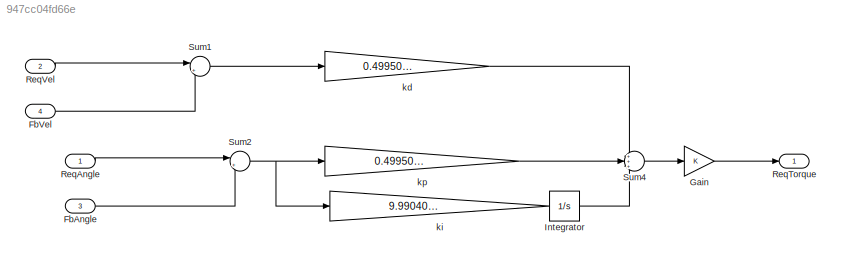
MODEL slx_947cc04fd66e
KIND model
CONFIG AbsTol = auto
CONFIG EnableMultiTasking = off
CONFIG FixedStep = auto
CONFIG MaxStep = auto
CONFIG MinStep = auto
CONFIG RelTol = 1e-3
CONFIG SampleTimeConstraint = Unconstrained
CONFIG SolverName = VariableStepAuto
CONFIG StartTime = 0.0
CONFIG StopTime = 10.0
BLOCK [Inport] FbAngle
  Port = 3
BLOCK [Inport] FbVel
  Port = 4
BLOCK [Gain] Gain
BLOCK [Integrator] Integrator
BLOCK [Inport] ReqAngle
BLOCK [Outport] ReqTorque
BLOCK [Inport] ReqVel
  Port = 2
BLOCK [Sum] Sum1
  Inputs = |+-
BLOCK [Sum] Sum2
  Inputs = |+-
BLOCK [Sum] Sum4
  Inputs = +++
BLOCK [Gain] kd
  Gain = 0.4995004995005
BLOCK [Gain] ki
  Gain = 9.99040919079382e-11
BLOCK [Gain] kp
  Gain = 0.499500459540461
LINE FbAngle:1 -> Sum2:2
LINE FbVel:1 -> Sum1:2
LINE Gain:1 -> ReqTorque:1
LINE Integrator:1 -> Sum4:3
LINE ReqAngle:1 -> Sum2:1
LINE ReqVel:1 -> Sum1:1
LINE Sum1:1 -> kd:1
NET Sum2:1 -> ki:1, kp:1
LINE Sum4:1 -> Gain:1
LINE kd:1 -> Sum4:1
LINE ki:1 -> Integrator:1
LINE kp:1 -> Sum4:2
note: NET lines group one-source signal fan-out (src -> all destinations, sorted); 1:1 wires keep LINE
